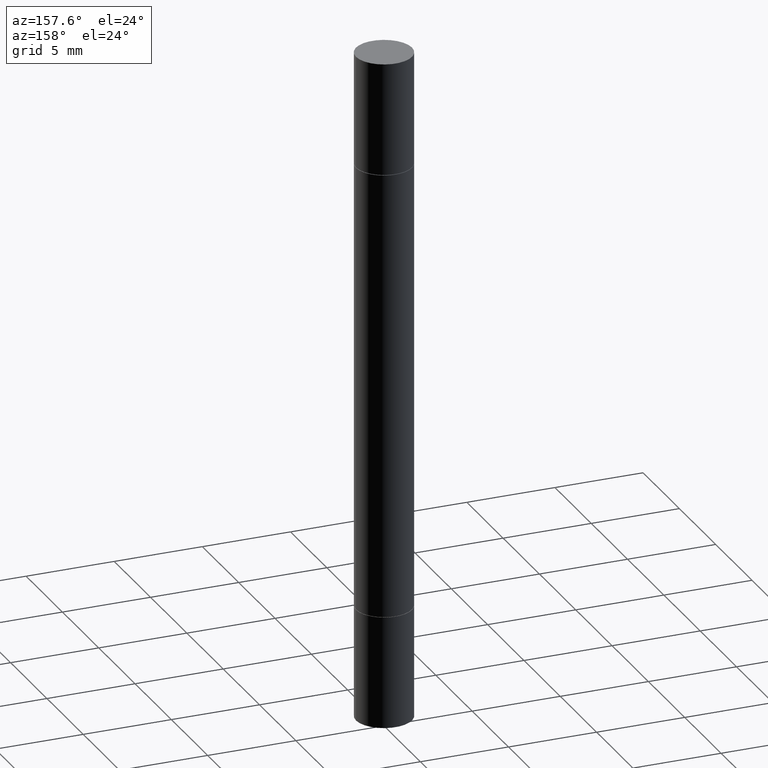
[diagram: clean part render]
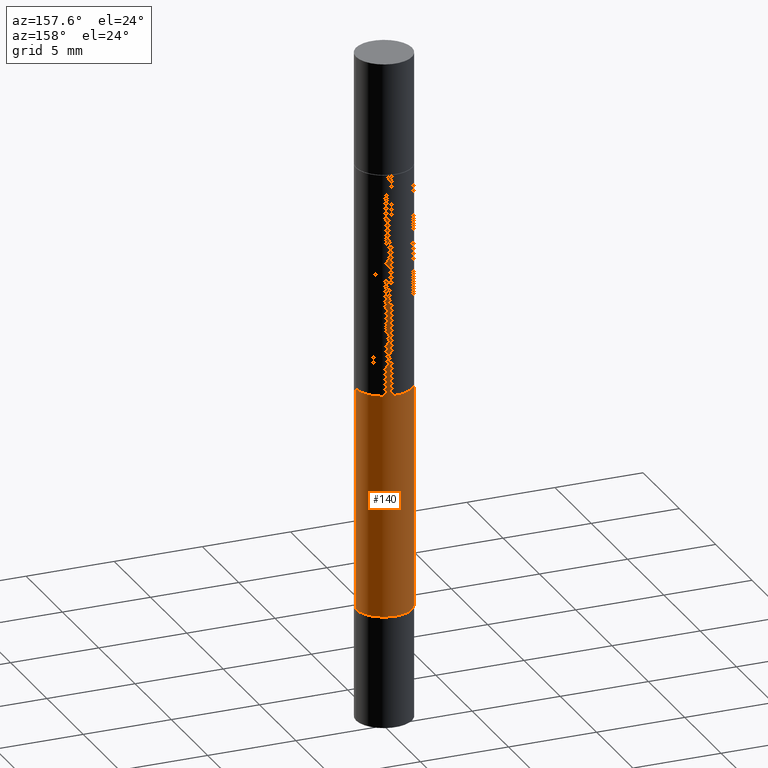
[diagram: same view with one face highlighted and labeled with its STEP entity id]
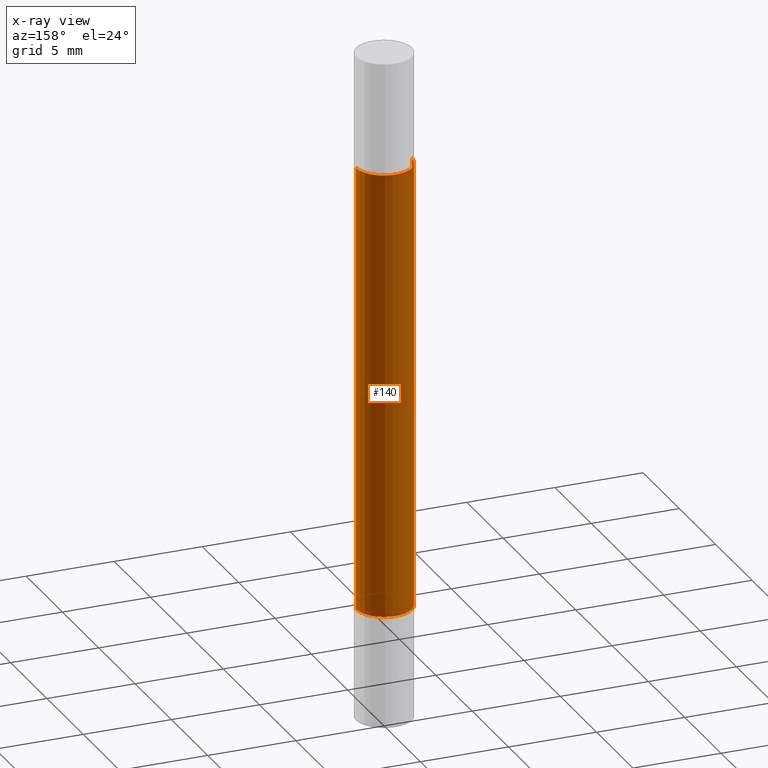
[diagram: x-ray of the same camera — body ghosted, the highlighted face saturated]
A machine part, auxiliary view. The second image highlights one B-rep face of the part: STEP entity #140.
The next image is the same camera in x-ray: the body ghosted, the highlighted face saturated — about 0% of this face is hidden behind the body in this view.
In plain terms, the highlighted cylindrical surface (edge-blend (fillet) strip) has radius 1.5875 mm, axis along (-0, -0, -1).
Its self-contained STEP definition (entity closure, byte-faithful):
#7 = CARTESIAN_POINT ( 'NONE',  ( -0.06249999999999996531, -4.809497687935452578E-15, -1.499999999999999778 ) ) ;
#19 = CIRCLE ( 'NONE', #389, 0.06250000000000005551 ) ;
#26 = AXIS2_PLACEMENT_3D ( 'NONE', #586, #584, #326 ) ;
#44 = CARTESIAN_POINT ( 'NONE',  ( -0.06250000000000005551, -4.468775639073129860E-16, -0.2509999999999998899 ) ) ;
#58 = DIRECTION ( 'NONE',  ( -2.445468806185136877E-29, -3.492890411551753071E-15, -1.000000000000000000 ) ) ;
#61 = CARTESIAN_POINT ( 'NONE',  ( -0.06250000000000005551, -2.189829879271635210E-15, -1.248999999999999888 ) ) ;
#66 = CIRCLE ( 'NONE', #440, 0.06250000000000005551 ) ;
#97 = DIRECTION ( 'NONE',  ( 1.000000000000000000, -6.982962677686264344E-15, 0.000000000000000000 ) ) ;
#131 = VERTEX_POINT ( 'NONE', #61 ) ;
#139 = VECTOR ( 'NONE', #58, 39.37007874015748143 ) ;
#140 = ADVANCED_FACE ( 'NONE', ( #230 ), #380, .T. ) ;
#172 = EDGE_CURVE ( 'NONE', #275, #131, #66, .T. ) ;
#182 = EDGE_LOOP ( 'NONE', ( #487, #393, #511, #504 ) ) ;
#189 = CARTESIAN_POINT ( 'NONE',  ( 0.06250000000000005551, -4.797295359570480345E-15, -1.248999999999999888 ) ) ;
#230 = FACE_OUTER_BOUND ( 'NONE', #182, .T. ) ;
#235 = CARTESIAN_POINT ( 'NONE',  ( 0.06250000000000005551, -1.312093856123426167E-15, -0.2509999999999998899 ) ) ;
#241 = DIRECTION ( 'NONE',  ( -2.445468806185136877E-29, -3.492890411551753071E-15, -1.000000000000000000 ) ) ;
#242 = VECTOR ( 'NONE', #241, 39.37007874015748143 ) ;
#263 = EDGE_CURVE ( 'NONE', #640, #275, #306, .T. ) ;
#275 = VERTEX_POINT ( 'NONE', #189 ) ;
#276 = DIRECTION ( 'NONE',  ( -2.445468806185136597E-29, 3.491481338843145583E-15, 1.000000000000000000 ) ) ;
#306 = LINE ( 'NONE', #515, #242 ) ;
#326 = DIRECTION ( 'NONE',  ( 1.000000000000000000, -6.982962677686266711E-15, 0.000000000000000000 ) ) ;
#367 = DIRECTION ( 'NONE',  ( 2.445468806185136597E-29, 3.492890411551752677E-15, 1.000000000000000000 ) ) ;
#380 = CYLINDRICAL_SURFACE ( 'NONE', #26, 0.06249999999999996531 ) ;
#389 = AXIS2_PLACEMENT_3D ( 'NONE', #679, #367, #97 ) ;
#393 = ORIENTED_EDGE ( 'NONE', *, *, #465, .F. ) ;
#412 = LINE ( 'NONE', #7, #139 ) ;
#420 = VERTEX_POINT ( 'NONE', #44 ) ;
#440 = AXIS2_PLACEMENT_3D ( 'NONE', #593, #276, #582 ) ;
#465 = EDGE_CURVE ( 'NONE', #640, #420, #19, .T. ) ;
#487 = ORIENTED_EDGE ( 'NONE', *, *, #496, .F. ) ;
#496 = EDGE_CURVE ( 'NONE', #420, #131, #412, .T. ) ;
#504 = ORIENTED_EDGE ( 'NONE', *, *, #172, .T. ) ;
#511 = ORIENTED_EDGE ( 'NONE', *, *, #263, .T. ) ;
#515 = CARTESIAN_POINT ( 'NONE',  ( 0.06249999999999996531, -5.674713980151564181E-15, -1.499999999999999778 ) ) ;
#582 = DIRECTION ( 'NONE',  ( 1.000000000000000000, -6.982962677686264344E-15, 0.000000000000000000 ) ) ;
#584 = DIRECTION ( 'NONE',  ( -2.445468806185136597E-29, -3.492890411551752677E-15, -1.000000000000000000 ) ) ;
#586 = CARTESIAN_POINT ( 'NONE',  ( 0.000000000000000000, -5.238278812796173300E-15, -1.499999999999999778 ) ) ;
#593 = CARTESIAN_POINT ( 'NONE',  ( 3.054390538925235704E-29, -4.360860192215088675E-15, -1.248999999999999888 ) ) ;
#640 = VERTEX_POINT ( 'NONE', #235 ) ;
#679 = CARTESIAN_POINT ( 'NONE',  ( 3.054390538925235704E-29, -8.756586887680336100E-16, -0.2509999999999998899 ) ) ;